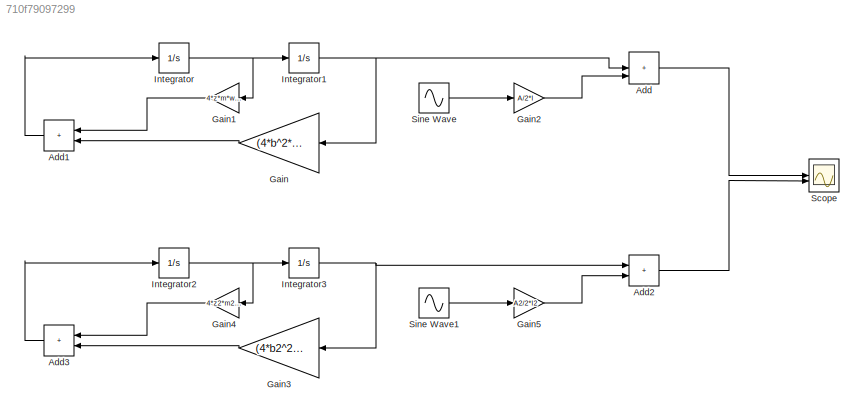
MODEL slx_710f79097299
KIND model
CONFIG AbsTol = auto
CONFIG EnableMultiTasking = off
CONFIG FixedStep = 1e-3
CONFIG MaxStep = auto
CONFIG MinStep = auto
CONFIG RelTol = 1e-3
CONFIG SampleTimeConstraint = Unconstrained
CONFIG SolverName = FixedStepAuto
CONFIG StartTime = 0.0
CONFIG StopTime = 100.0
WORKSPACE source: mxarray member
WORKSPACE teta1 = 0
BLOCK [Sum] Add
  IconShape = rectangular
  Inputs = +++
BLOCK [Sum] Add1
  IconShape = rectangular
BLOCK [Sum] Add2
  IconShape = rectangular
BLOCK [Sum] Add3
  IconShape = rectangular
BLOCK [Gain] Gain
  Gain = (4*b^2*k - g*m*l)/(2*m*l^2)
  NameLocation = top
BLOCK [Gain] Gain1
  Gain = 4*z*m*w_n
BLOCK [Gain] Gain2
  Gain = A/2*l
BLOCK [Gain] Gain3
  Gain = (4*b2^2*k2 - g*m2*l2)/(2*m2*l2^2)
  NameLocation = top
BLOCK [Gain] Gain4
  Gain = 4*z2*m2*w_n2
BLOCK [Gain] Gain5
  Gain = A2/2*l2
BLOCK [Integrator] Integrator
BLOCK [Integrator] Integrator1
  InitialCondition = teta1
BLOCK [Integrator] Integrator2
BLOCK [Integrator] Integrator3
BLOCK [Scope] Scope
  Floating = off
  NumInputPorts = 2
  ScopeSpecificationString = Simulink.scopes.TimeScopeBlockCfg('CurrentConfiguration', extmgr.ConfigurationSet(extmgr.Configuration('Core','General UI',true),extmgr.Configuration('Core','Source UI',true),extmgr.Configuration('Sources','WiredSimulink',true),extmgr.Configuration('Visuals','Time Domain',true,'SerializedDisplays',{struct('MinYLimReal','-0.9375','MaxYLimReal','0.9375','YLabelReal','','MinYLimMag','0.00000','MaxYLi...<+1402ch>
BLOCK [Sin] Sine Wave
  Frequency = w_n
  SampleTime = 0
BLOCK [Sin] Sine Wave1
  Frequency = w_n
  SampleTime = 0
LINE Add1:1 -> Integrator:1
LINE Add2:1 -> Scope:2
LINE Add3:1 -> Integrator2:1
LINE Add:1 -> Scope:1
LINE Gain1:1 -> Add1:1
LINE Gain2:1 -> Add:3
LINE Gain3:1 -> Add3:2
LINE Gain4:1 -> Add3:1
LINE Gain5:1 -> Add2:2
LINE Gain:1 -> Add1:2
NET Integrator1:1 -> Add:2, Gain:1
NET Integrator2:1 -> Gain4:1, Integrator3:1
NET Integrator3:1 -> Add2:1, Gain3:1
NET Integrator:1 -> Gain1:1, Integrator1:1
LINE Sine Wave1:1 -> Gain5:1
LINE Sine Wave:1 -> Gain2:1
note: NET lines group one-source signal fan-out (src -> all destinations, sorted); 1:1 wires keep LINE
